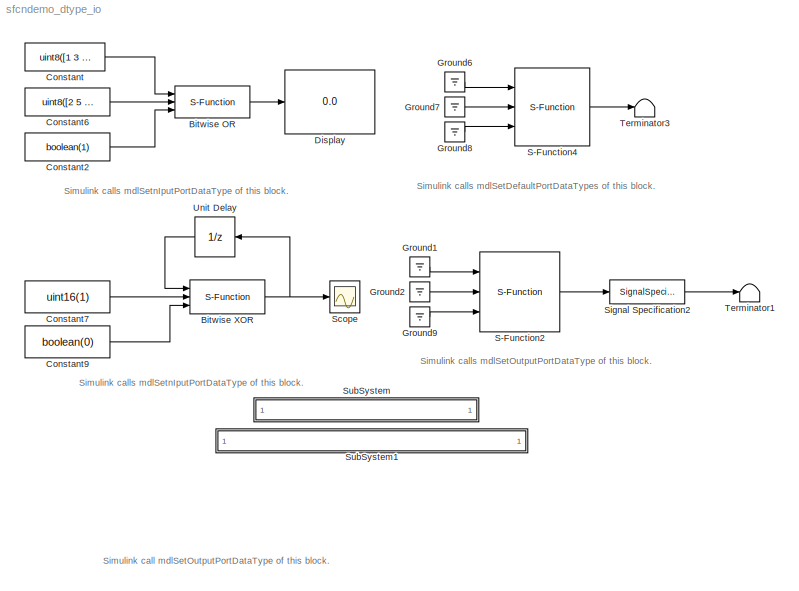
MODEL sfcndemo_dtype_io
KIND model
BLOCK [S-Function] Bitwise OR
  FunctionName = sfun_dtype_io
  Ports = [3, 1]
BLOCK [S-Function] Bitwise XOR
  FunctionName = sfun_dtype_io
  Ports = [3, 1]
BLOCK [Constant] Constant
  Value = uint8([1 3 5])
BLOCK [Constant] Constant2
  Value = boolean(1)
BLOCK [Constant] Constant6
  Value = uint8([2 5 12])
BLOCK [Constant] Constant7
  Value = uint16(1)
BLOCK [Constant] Constant9
  Value = boolean(0)
BLOCK [Display] Display
  Decimation = 1
  Ports = [1]
BLOCK [Ground] Ground1
BLOCK [Ground] Ground2
BLOCK [Ground] Ground6
BLOCK [Ground] Ground7
BLOCK [Ground] Ground8
BLOCK [Ground] Ground9
BLOCK [S-Function] S-Function2
  FunctionName = sfun_dtype_io
  Ports = [3, 1]
BLOCK [S-Function] S-Function4
  FunctionName = sfun_dtype_io
  Ports = [3, 1]
BLOCK [Scope] Scope
  DataFormat = StructureWithTime
  NumInputPorts = 1
  Ports = [1]
BLOCK [SignalSpecification] Signal Specification2
  DataType = uint32
BLOCK [SubSystem] SubSystem
  MaskDisplay = disp('matlabroot<path>');
  MaskIconFrame = on
  MaskIconOpaque = on
  MaskIconRotate = none
  MaskIconUnits = autoscale
  MinAlgLoopOccurrences = off
  OpenFcn = edit(fullfile(matlabroot,'simulink','src','sfun_dtype_io.c'))
  Ports = []
  PropExecContextAcrossSSBoundary = on
  RTWSystemCode = Auto
  TreatAsAtomicUnit = off
BLOCK [SubSystem] SubSystem1
  MaskDisplay = disp('matlabroot<path>');
  MaskIconFrame = on
  MaskIconOpaque = on
  MaskIconRotate = none
  MaskIconUnits = autoscale
  MinAlgLoopOccurrences = off
  OpenFcn = edit(fullfile(matlabroot,'toolbox','simulink','blocks','tlc_c','sfun_dtype_io.tlc'))
  Ports = []
  PropExecContextAcrossSSBoundary = on
  RTWSystemCode = Auto
  TreatAsAtomicUnit = off
BLOCK [Terminator] Terminator1
BLOCK [Terminator] Terminator3
BLOCK [UnitDelay] Unit Delay
ANNOTATION (root): Simulink call mdlSetOutputPortDataType of this block.
ANNOTATION (root): Simulink calls mdlSetDefaultPortDataTypes of this block.
ANNOTATION (root): Simulink calls mdlSetOutputPortDataType of this block.
ANNOTATION (root): Simulink calls mdlSetnIputPortDataType of this block.
LINE Bitwise OR:1 -> Display:1
NET Bitwise XOR:1 -> Scope:1, Unit Delay:1
LINE Constant2:1 -> Bitwise OR:3
LINE Constant6:1 -> Bitwise OR:2
LINE Constant7:1 -> Bitwise XOR:2
LINE Constant9:1 -> Bitwise XOR:3
LINE Constant:1 -> Bitwise OR:1
LINE Ground1:1 -> S-Function2:1
LINE Ground2:1 -> S-Function2:2
LINE Ground6:1 -> S-Function4:1
LINE Ground7:1 -> S-Function4:2
LINE Ground8:1 -> S-Function4:3
LINE Ground9:1 -> S-Function2:3
LINE S-Function2:1 -> Signal Specification2:1
LINE S-Function4:1 -> Terminator3:1
LINE Signal Specification2:1 -> Terminator1:1
LINE Unit Delay:1 -> Bitwise XOR:1
note: NET lines group one-source signal fan-out (src -> all destinations, sorted); 1:1 wires keep LINE
note: 2 file-system paths scrubbed to <path> (not preserved elsewhere — flat text is the only slx artifact)
